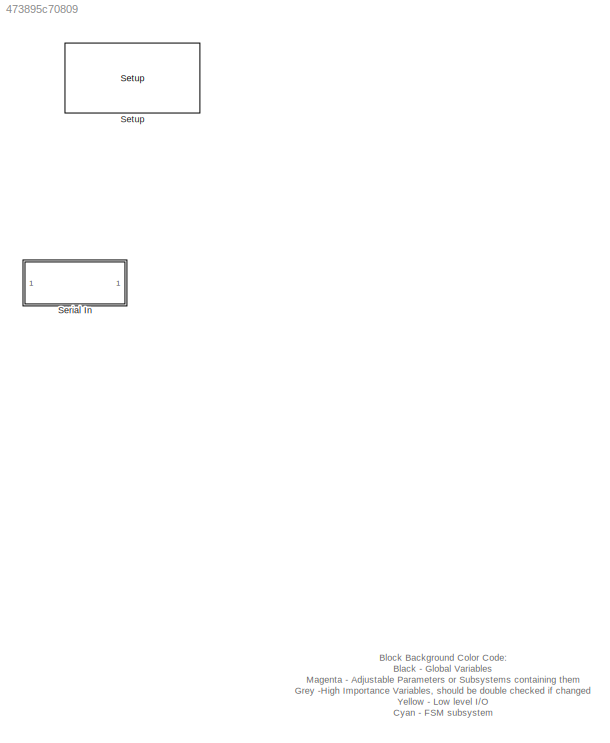
MODEL slx_473895c70809
KIND model
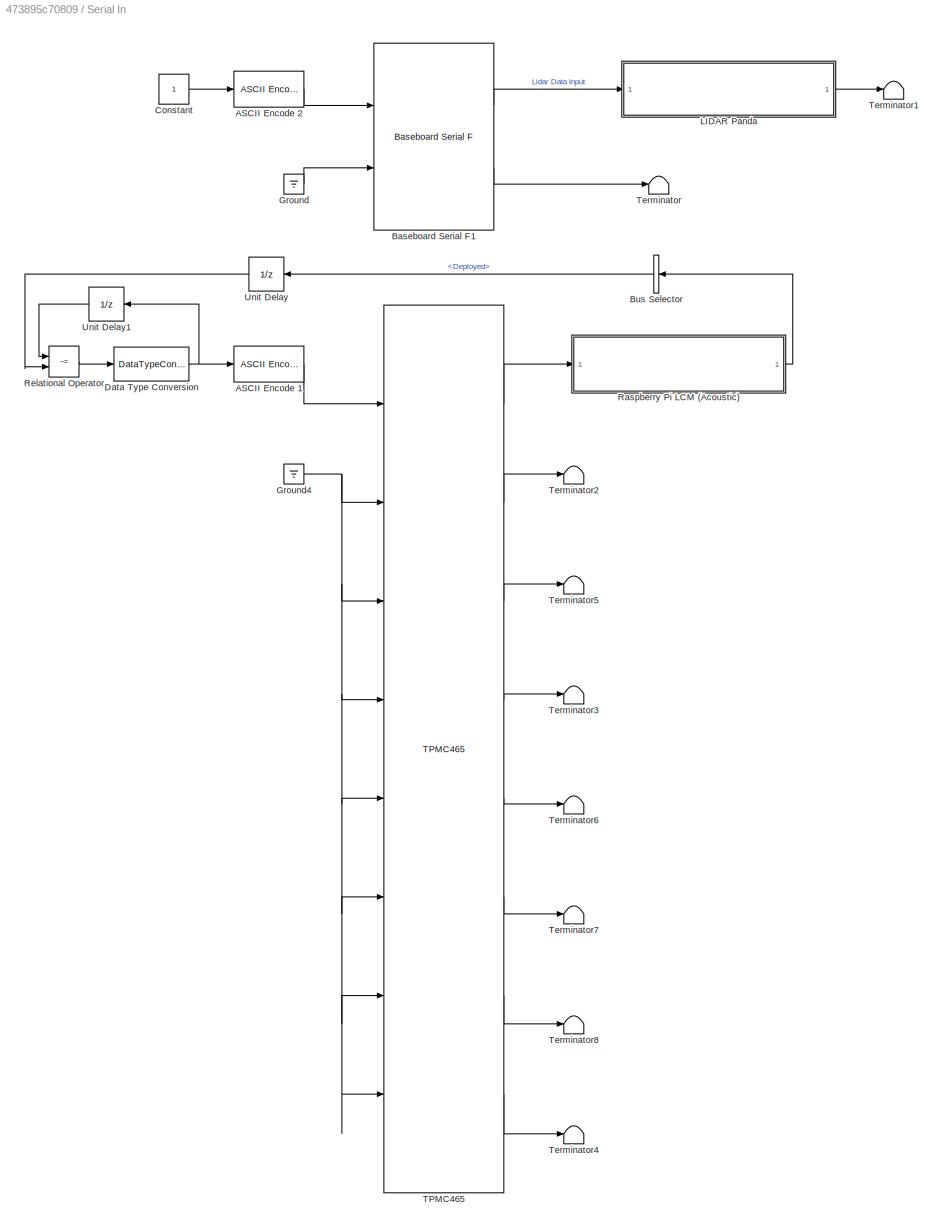
BLOCK [SubSystem] Serial In
  Ports = []
  RequestExecContextInheritance = off
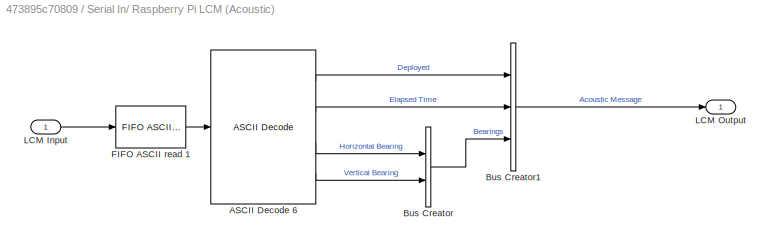
BLOCK [SubSystem] Serial In/ Raspberry Pi LCM (Acoustic)
  Ports = [1, 1]
  RequestExecContextInheritance = off
BLOCK [Reference] Serial In/ Raspberry Pi LCM (Acoustic)/ASCII Decode 6  REF=xpcseriallib/ASCII Decode 
  Ports = [1, 4]
  SourceBlock = xpcseriallib/ASCII Decode
  SourceType = ASCII Decode
  format = Deploy:%1u, Elapsed:%g, Bearing1:%g Bearing2:%g \r\n
  nvars = 4
  vartypes = {}
BLOCK [BusCreator] Serial In/ Raspberry Pi LCM (Acoustic)/Bus Creator
  DisplayOption = bar
  Inputs = 2
  Ports = [2, 1]
BLOCK [BusCreator] Serial In/ Raspberry Pi LCM (Acoustic)/Bus Creator1
  DisplayOption = bar
  Inputs = 3
  Ports = [3, 1]
BLOCK [Reference] Serial In/ Raspberry Pi LCM (Acoustic)/FIFO ASCII read 1  REF=xpcseriallib/FIFO ASCII read 
  Ports = [1, 1]
  SourceBlock = xpcseriallib/FIFO ASCII read
  SourceType = Asynchronous FIFO Block: reader
  enable = off
  header = {'Deploy:'}
  hold = Zero output if no new data
  maxsize = 1024
  outputtype = 8 bit uint null terminated
  sampletime = -1
  term = [13 10]
BLOCK [Inport] Serial In/ Raspberry Pi LCM (Acoustic)/LCM Input
  IconDisplay = Port number
BLOCK [Outport] Serial In/ Raspberry Pi LCM (Acoustic)/LCM Output
  IconDisplay = Port number
BLOCK [Reference] Serial In/ASCII Encode 1  REF=xpcseriallib/ASCII Encode 
  Ports = [1, 1]
  SourceBlock = xpcseriallib/ASCII Encode
  SourceType = ASCII Encode
  format = {"Activate":%d} \r\n
  maxlength = 20
  nvars = 1
  vartypes = { 'double' }
BLOCK [Reference] Serial In/ASCII Encode 2  REF=xpcseriallib/ASCII Encode 
  Ports = [1, 1]
  SourceBlock = xpcseriallib/ASCII Encode
  SourceType = ASCII Encode
  format = SGTask:%d \r\n
  maxlength = 128
  nvars = 1
  vartypes = { 'double' }
BLOCK [Reference] Serial In/Baseboard Serial F1  REF=xpcseriallib/Mainboard/Baseboard
Serial F
  Ports = [2, 2]
  SourceBlock = xpcseriallib/Mainboard/Baseboard\nSerial F
  SourceType = Baseboard RS232 Send Receive
  automode1 = on
  automode2 = on
  baud1 = 115200
  baud2 = 115200
  config = Com2/Com4
  fifomode1 = 64 deep
  fifomode2 = 64 deep
  group = Basic Setup
  irqnum = 4
  ndata1 = 7
  ndata2 = 7
  nstop1 = 1
  nstop2 = 1
  parity1 = Even
  parity2 = Even
  port = 2
  rcvfifosize1 = 1024
  rcvfifosize2 = 1024
  rlevel1 = quarter full
  rlevel2 = quarter full
  saddr1 = 0x3f8
  saddr2 = 0x3e8
  xmtdatatype1 = 8 bit uint null terminated
  xmtdatatype2 = 8 bit uint null terminated
  xmtfifosize1 = 1024
  xmtfifosize2 = 1024
BLOCK [BusSelector] Serial In/Bus Selector
  OutputSignals = Deployed
  Ports = [1, 1]
BLOCK [Constant] Serial In/Constant
BLOCK [DataTypeConversion] Serial In/Data Type Conversion
  OutDataTypeStr = double
  RndMeth = Floor
  SaturateOnIntegerOverflow = off
BLOCK [Ground] Serial In/Ground
BLOCK [Ground] Serial In/Ground4
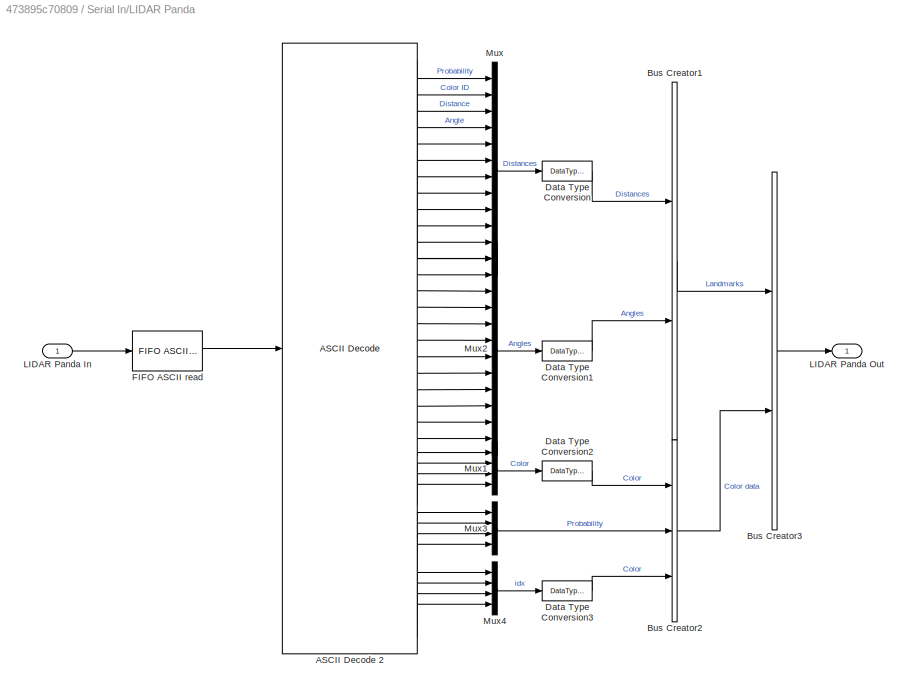
BLOCK [SubSystem] Serial In/LIDAR Panda
  Ports = [1, 1]
  RequestExecContextInheritance = off
BLOCK [Reference] Serial In/LIDAR Panda/ASCII Decode 2  REF=xpcseriallib/ASCII Decode 
  Ports = [1, 36]
  SourceBlock = xpcseriallib/ASCII Decode
  SourceType = ASCII Decode
  format = A:%d B:%d C:%d E:%d F:%d G:%d H:%d I:%d J:%d K:%d L:%d M:%d N:%d O:%d P:%d Q:%d R:%d S:%d T:%d U:%d V:%d W:%d X:%d C1:%d C2:%d C3:%d C4:%d P1:%f P2:%f P3:%f P4:%f I1:%d I2:%d I3:%d I4:%d \r\n
  nvars = 36
  vartypes = {}
BLOCK [BusCreator] Serial In/LIDAR Panda/Bus Creator1
  DisplayOption = bar
  Inputs = 2
  Ports = [2, 1]
BLOCK [BusCreator] Serial In/LIDAR Panda/Bus Creator2
  DisplayOption = bar
  Inputs = 3
  Ports = [3, 1]
BLOCK [BusCreator] Serial In/LIDAR Panda/Bus Creator3
  DisplayOption = bar
  Inputs = 2
  Ports = [2, 1]
BLOCK [DataTypeConversion] Serial In/LIDAR Panda/Data Type Conversion
  OutDataTypeStr = double
  RndMeth = Floor
  SaturateOnIntegerOverflow = off
BLOCK [DataTypeConversion] Serial In/LIDAR Panda/Data Type Conversion1
  OutDataTypeStr = double
  RndMeth = Floor
  SaturateOnIntegerOverflow = off
BLOCK [DataTypeConversion] Serial In/LIDAR Panda/Data Type Conversion2
  OutDataTypeStr = double
  RndMeth = Floor
  SaturateOnIntegerOverflow = off
BLOCK [DataTypeConversion] Serial In/LIDAR Panda/Data Type Conversion3
  OutDataTypeStr = double
  RndMeth = Floor
  SaturateOnIntegerOverflow = off
BLOCK [Reference] Serial In/LIDAR Panda/FIFO ASCII read   REF=xpcseriallib/FIFO ASCII read 
  Ports = [1, 1]
  SourceBlock = xpcseriallib/FIFO ASCII read
  SourceType = Asynchronous FIFO Block: reader
  enable = off
  header = {'A:'}
  hold = Zero output if no new data
  maxsize = 1024
  outputtype = 8 bit uint null terminated
  sampletime = -1
  term = [13 10]
BLOCK [Inport] Serial In/LIDAR Panda/LIDAR Panda In
  IconDisplay = Port number
BLOCK [Outport] Serial In/LIDAR Panda/LIDAR Panda Out
  IconDisplay = Port number
BLOCK [Mux] Serial In/LIDAR Panda/Mux
  DisplayOption = bar
  Inputs = 12
  Ports = [12, 1]
BLOCK [Mux] Serial In/LIDAR Panda/Mux1
  DisplayOption = bar
  Ports = [4, 1]
BLOCK [Mux] Serial In/LIDAR Panda/Mux2
  DisplayOption = bar
  Inputs = 12
  Ports = [12, 1]
BLOCK [Mux] Serial In/LIDAR Panda/Mux3
  DisplayOption = bar
  Ports = [4, 1]
BLOCK [Mux] Serial In/LIDAR Panda/Mux4
  DisplayOption = bar
  Ports = [4, 1]
BLOCK [RelationalOperator] Serial In/Relational Operator
  InputSameDT = off
  Operator = ~=
  OutDataTypeStr = boolean
  Ports = [2, 1]
BLOCK [Reference] Serial In/TPMC465  REF=speedgoatlib/IO504/TPMC465  (lib defined in mdl_2b10c7445f81, mdl_649b3eec89a6, +4 more)
  Ports = [8, 8]
  SourceBlock = speedgoatlib/IO504/TPMC465
  SourceType = sendreceive_IO504
  baud1 = 115200
  baud2 = 115200
  baud3 = 115200
  baud4 = 115200
  baud5 = 115200
  baud6 = 115200
  baud7 = 115200
  baud8 = 115200
  bauddivisor1 = 1
  bauddivisor2 = 1
  bauddivisor3 = 1
  bauddivisor4 = 1
  bauddivisor5 = 1
  bauddivisor6 = 1
  bauddivisor7 = 1
  bauddivisor8 = 1
  group = Basic Setup
  hwmode1 = none
  hwmode2 = none
  hwmode3 = none
  hwmode4 = none
  hwmode5 = none
  hwmode6 = none
  hwmode7 = none
  hwmode8 = none
  irqnum = 9
  ndata1 = 7
  ndata2 = 8
  ndata3 = 8
  ndata4 = 8
  ndata5 = 8
  ndata6 = 8
  ndata7 = 8
  ndata8 = 8
  nstop1 = 1
  nstop2 = 1
  nstop3 = 1
  nstop4 = 1
  nstop5 = 1
  nstop6 = 1
  nstop7 = 1
  nstop8 = 1
  parity1 = Even
  parity2 = None
  parity3 = None
  parity4 = None
  parity5 = None
  parity6 = None
  parity7 = None
  parity8 = None
  port = 2
  prescale1 = off
  prescale2 = off
  prescale3 = off
  prescale4 = off
  prescale5 = off
  prescale6 = off
  prescale7 = off
  prescale8 = off
  rcvfifosize1 = 1024
  rcvfifosize2 = 1024
  rcvfifosize3 = 1024
  rcvfifosize4 = 1024
  rcvfifosize5 = 1024
  rcvfifosize6 = 1024
  rcvfifosize7 = 1024
  rcvfifosize8 = 1024
  rlevel1 = half full (32)
  rlevel2 = half full (32)
  rlevel3 = half full (32)
  rlevel4 = half full (32)
  rlevel5 = 1
  rlevel6 = 1
  rlevel7 = 1
  rlevel8 = 1
  rs485auto1 = off
  rs485auto2 = off
  rs485auto3 = off
  rs485auto4 = off
  rs485auto5 = off
  rs485auto6 = off
  rs485auto7 = off
  rs485auto8 = off
  rs485delay1 = 0
  rs485delay2 = 0
  rs485delay3 = 0
  rs485delay4 = 0
  rs485delay5 = 0
  rs485delay6 = 0
  rs485delay7 = 0
  rs485delay8 = 0
  sampling1 = 16x (standard)
  sampling2 = 16x (standard)
  sampling3 = 16x (standard)
  sampling4 = 16x (standard)
  sampling5 = 16x (standard)
  sampling6 = 16x (standard)
  sampling7 = 16x (standard)
  sampling8 = 16x (standard)
  slot = -1
  standard1 = on
  standard2 = on
  standard3 = on
  standard4 = on
  standard5 = on
  standard6 = on
  standard7 = on
  standard8 = on
  swmode1 = none
  swmode2 = none
  swmode3 = none
  swmode4 = none
  swmode5 = none
  swmode6 = none
  swmode7 = none
  swmode8 = none
  transceiver1 = RS232 (max 921.6kb/s)
  transceiver2 = RS232 (max 921.6kb/s)
  transceiver3 = RS232 (max 921.6kb/s)
  transceiver4 = RS232 (max 921.6kb/s)
  transceiver5 = RS232 (max 921.6kb/s)
  transceiver6 = RS232 (max 921.6kb/s)
  transceiver7 = RS232 (max 921.6kb/s)
  transceiver8 = RS232 (max 921.6kb/s)
  xmtdatatype1 = 8 bit uint null terminated
  xmtdatatype2 = 8 bit uint null terminated
  xmtdatatype3 = 8 bit uint null terminated
  xmtdatatype4 = 8 bit uint null terminated
  xmtdatatype5 = 8 bit uint null terminated
  xmtdatatype6 = 8 bit uint null terminated
  xmtdatatype7 = 8 bit uint null terminated
  xmtdatatype8 = 8 bit uint null terminated
  xmtfifosize1 = 1024
  xmtfifosize2 = 1024
  xmtfifosize3 = 1024
  xmtfifosize4 = 1024
  xmtfifosize5 = 1024
  xmtfifosize6 = 1024
  xmtfifosize7 = 1024
  xmtfifosize8 = 1024
  xoffchar1 = 19
  xoffchar2 = 19
  xoffchar3 = 19
  xoffchar4 = 19
  xoffchar5 = 19
  xoffchar6 = 19
  xoffchar7 = 19
  xoffchar8 = 19
  xonchar1 = 17
  xonchar2 = 17
  xonchar3 = 17
  xonchar4 = 17
  xonchar5 = 17
  xonchar6 = 17
  xonchar7 = 17
  xonchar8 = 17
BLOCK [Terminator] Serial In/Terminator
BLOCK [Terminator] Serial In/Terminator1
BLOCK [Terminator] Serial In/Terminator2
BLOCK [Terminator] Serial In/Terminator3
BLOCK [Terminator] Serial In/Terminator4
BLOCK [Terminator] Serial In/Terminator5
BLOCK [Terminator] Serial In/Terminator6
BLOCK [Terminator] Serial In/Terminator7
BLOCK [Terminator] Serial In/Terminator8
BLOCK [UnitDelay] Serial In/Unit Delay
  InputProcessing = Elements as channels (sample based)
  SampleTime = -1
BLOCK [UnitDelay] Serial In/Unit Delay1
  InitialCondition = 1
  InputProcessing = Elements as channels (sample based)
  SampleTime = -1
BLOCK [Reference] Setup  REF=speedgoatlib_IO102/Setup
  Ports = []
  SourceBlock = speedgoatlib_IO102/Setup
  SourceType = setup_IO102
  adChannel = 16
  adChannelMode = Multiple-channel (enter number of channels below)
  adCoupling = Differential
  cal = off
  daChannel = [1,2,3,4]
  daInitValue = [0]
  daReset = [1]
  diChannel = [1,2,3,4,5,6,7,8]
  doChannel = [1,2,3,4,5,6,7,8]
  doInitValue = [0]
  doReset = [1]
  group = Digital output setup
  id = 1
  pciSlot = -1
  range = +-5V
ANNOTATION (root): Block Background Color Code: Black - Global Variables Magenta - Adjustable Parameters or Subsystems containing them Grey -High Importance Variables, should be double checked if changed Yellow - Low level I/O Cyan - FSM subsystem Light Blue - Conditional Selector Block Dark Green - Task Enablers Orange - Output Selectors Green - Signal Bussing Blocks Red - Logic blocks. Determine signals for output...<+28ch>
LINE Serial In/ Raspberry Pi LCM (Acoustic)/ASCII Decode 6:1 -> Serial In/ Raspberry Pi LCM (Acoustic)/Bus Creator1:1
LINE Serial In/ Raspberry Pi LCM (Acoustic)/ASCII Decode 6:2 -> Serial In/ Raspberry Pi LCM (Acoustic)/Bus Creator1:2
LINE Serial In/ Raspberry Pi LCM (Acoustic)/ASCII Decode 6:3 -> Serial In/ Raspberry Pi LCM (Acoustic)/Bus Creator:1
LINE Serial In/ Raspberry Pi LCM (Acoustic)/ASCII Decode 6:4 -> Serial In/ Raspberry Pi LCM (Acoustic)/Bus Creator:2
LINE Serial In/ Raspberry Pi LCM (Acoustic)/Bus Creator1:1 -> Serial In/ Raspberry Pi LCM (Acoustic)/LCM Output:1
LINE Serial In/ Raspberry Pi LCM (Acoustic)/Bus Creator:1 -> Serial In/ Raspberry Pi LCM (Acoustic)/Bus Creator1:3
LINE Serial In/ Raspberry Pi LCM (Acoustic)/FIFO ASCII read 1:1 -> Serial In/ Raspberry Pi LCM (Acoustic)/ASCII Decode 6:1
LINE Serial In/ Raspberry Pi LCM (Acoustic)/LCM Input:1 -> Serial In/ Raspberry Pi LCM (Acoustic)/FIFO ASCII read 1:1
LINE Serial In/ Raspberry Pi LCM (Acoustic):1 -> Serial In/Bus Selector:1
LINE Serial In/ASCII Encode 1:1 -> Serial In/TPMC465:1
LINE Serial In/ASCII Encode 2:1 -> Serial In/Baseboard Serial F1:1
LINE Serial In/Baseboard Serial F1:1 -> Serial In/LIDAR Panda:1
LINE Serial In/Baseboard Serial F1:2 -> Serial In/Terminator:1
LINE Serial In/Bus Selector:1 -> Serial In/Unit Delay:1
LINE Serial In/Constant:1 -> Serial In/ASCII Encode 2:1
NET Serial In/Data Type Conversion:1 -> Serial In/ASCII Encode 1:1, Serial In/Unit Delay1:1
NET Serial In/Ground4:1 -> Serial In/TPMC465:2, Serial In/TPMC465:3, Serial In/TPMC465:4, Serial In/TPMC465:5, Serial In/TPMC465:6, Serial In/TPMC465:7, Serial In/TPMC465:8
LINE Serial In/Ground:1 -> Serial In/Baseboard Serial F1:2
LINE Serial In/LIDAR Panda/ASCII Decode 2:1 -> Serial In/LIDAR Panda/Mux:1
LINE Serial In/LIDAR Panda/ASCII Decode 2:10 -> Serial In/LIDAR Panda/Mux:10
LINE Serial In/LIDAR Panda/ASCII Decode 2:11 -> Serial In/LIDAR Panda/Mux:11
LINE Serial In/LIDAR Panda/ASCII Decode 2:12 -> Serial In/LIDAR Panda/Mux:12
LINE Serial In/LIDAR Panda/ASCII Decode 2:13 -> Serial In/LIDAR Panda/Mux2:1
LINE Serial In/LIDAR Panda/ASCII Decode 2:14 -> Serial In/LIDAR Panda/Mux2:2
LINE Serial In/LIDAR Panda/ASCII Decode 2:15 -> Serial In/LIDAR Panda/Mux2:3
LINE Serial In/LIDAR Panda/ASCII Decode 2:16 -> Serial In/LIDAR Panda/Mux2:4
LINE Serial In/LIDAR Panda/ASCII Decode 2:17 -> Serial In/LIDAR Panda/Mux2:5
LINE Serial In/LIDAR Panda/ASCII Decode 2:18 -> Serial In/LIDAR Panda/Mux2:6
LINE Serial In/LIDAR Panda/ASCII Decode 2:19 -> Serial In/LIDAR Panda/Mux2:7
LINE Serial In/LIDAR Panda/ASCII Decode 2:2 -> Serial In/LIDAR Panda/Mux:2
LINE Serial In/LIDAR Panda/ASCII Decode 2:20 -> Serial In/LIDAR Panda/Mux2:8
LINE Serial In/LIDAR Panda/ASCII Decode 2:21 -> Serial In/LIDAR Panda/Mux2:9
LINE Serial In/LIDAR Panda/ASCII Decode 2:22 -> Serial In/LIDAR Panda/Mux2:10
LINE Serial In/LIDAR Panda/ASCII Decode 2:23 -> Serial In/LIDAR Panda/Mux2:11
LINE Serial In/LIDAR Panda/ASCII Decode 2:24 -> Serial In/LIDAR Panda/Mux2:12
LINE Serial In/LIDAR Panda/ASCII Decode 2:25 -> Serial In/LIDAR Panda/Mux1:1
LINE Serial In/LIDAR Panda/ASCII Decode 2:26 -> Serial In/LIDAR Panda/Mux1:2
LINE Serial In/LIDAR Panda/ASCII Decode 2:27 -> Serial In/LIDAR Panda/Mux1:3
LINE Serial In/LIDAR Panda/ASCII Decode 2:28 -> Serial In/LIDAR Panda/Mux1:4
LINE Serial In/LIDAR Panda/ASCII Decode 2:29 -> Serial In/LIDAR Panda/Mux3:1
LINE Serial In/LIDAR Panda/ASCII Decode 2:3 -> Serial In/LIDAR Panda/Mux:3
LINE Serial In/LIDAR Panda/ASCII Decode 2:30 -> Serial In/LIDAR Panda/Mux3:2
LINE Serial In/LIDAR Panda/ASCII Decode 2:31 -> Serial In/LIDAR Panda/Mux3:3
LINE Serial In/LIDAR Panda/ASCII Decode 2:32 -> Serial In/LIDAR Panda/Mux3:4
LINE Serial In/LIDAR Panda/ASCII Decode 2:33 -> Serial In/LIDAR Panda/Mux4:1
LINE Serial In/LIDAR Panda/ASCII Decode 2:34 -> Serial In/LIDAR Panda/Mux4:2
LINE Serial In/LIDAR Panda/ASCII Decode 2:35 -> Serial In/LIDAR Panda/Mux4:3
LINE Serial In/LIDAR Panda/ASCII Decode 2:36 -> Serial In/LIDAR Panda/Mux4:4
LINE Serial In/LIDAR Panda/ASCII Decode 2:4 -> Serial In/LIDAR Panda/Mux:4
LINE Serial In/LIDAR Panda/ASCII Decode 2:5 -> Serial In/LIDAR Panda/Mux:5
LINE Serial In/LIDAR Panda/ASCII Decode 2:6 -> Serial In/LIDAR Panda/Mux:6
LINE Serial In/LIDAR Panda/ASCII Decode 2:7 -> Serial In/LIDAR Panda/Mux:7
LINE Serial In/LIDAR Panda/ASCII Decode 2:8 -> Serial In/LIDAR Panda/Mux:8
LINE Serial In/LIDAR Panda/ASCII Decode 2:9 -> Serial In/LIDAR Panda/Mux:9
LINE Serial In/LIDAR Panda/Bus Creator1:1 -> Serial In/LIDAR Panda/Bus Creator3:1
LINE Serial In/LIDAR Panda/Bus Creator2:1 -> Serial In/LIDAR Panda/Bus Creator3:2
LINE Serial In/LIDAR Panda/Bus Creator3:1 -> Serial In/LIDAR Panda/LIDAR Panda Out:1
LINE Serial In/LIDAR Panda/Data Type Conversion1:1 -> Serial In/LIDAR Panda/Bus Creator1:2
LINE Serial In/LIDAR Panda/Data Type Conversion2:1 -> Serial In/LIDAR Panda/Bus Creator2:1
LINE Serial In/LIDAR Panda/Data Type Conversion3:1 -> Serial In/LIDAR Panda/Bus Creator2:3
LINE Serial In/LIDAR Panda/Data Type Conversion:1 -> Serial In/LIDAR Panda/Bus Creator1:1
LINE Serial In/LIDAR Panda/FIFO ASCII read :1 -> Serial In/LIDAR Panda/ASCII Decode 2:1
LINE Serial In/LIDAR Panda/LIDAR Panda In:1 -> Serial In/LIDAR Panda/FIFO ASCII read :1
LINE Serial In/LIDAR Panda/Mux1:1 -> Serial In/LIDAR Panda/Data Type Conversion2:1
LINE Serial In/LIDAR Panda/Mux2:1 -> Serial In/LIDAR Panda/Data Type Conversion1:1
LINE Serial In/LIDAR Panda/Mux3:1 -> Serial In/LIDAR Panda/Bus Creator2:2
LINE Serial In/LIDAR Panda/Mux4:1 -> Serial In/LIDAR Panda/Data Type Conversion3:1
LINE Serial In/LIDAR Panda/Mux:1 -> Serial In/LIDAR Panda/Data Type Conversion:1
LINE Serial In/LIDAR Panda:1 -> Serial In/Terminator1:1
LINE Serial In/Relational Operator:1 -> Serial In/Data Type Conversion:1
LINE Serial In/TPMC465:1 -> Serial In/ Raspberry Pi LCM (Acoustic):1
LINE Serial In/TPMC465:2 -> Serial In/Terminator2:1
LINE Serial In/TPMC465:3 -> Serial In/Terminator5:1
LINE Serial In/TPMC465:4 -> Serial In/Terminator3:1
LINE Serial In/TPMC465:5 -> Serial In/Terminator6:1
LINE Serial In/TPMC465:6 -> Serial In/Terminator7:1
LINE Serial In/TPMC465:7 -> Serial In/Terminator8:1
LINE Serial In/TPMC465:8 -> Serial In/Terminator4:1
LINE Serial In/Unit Delay1:1 -> Serial In/Relational Operator:1
LINE Serial In/Unit Delay:1 -> Serial In/Relational Operator:2
note: NET lines group one-source signal fan-out (src -> all destinations, sorted); 1:1 wires keep LINE
